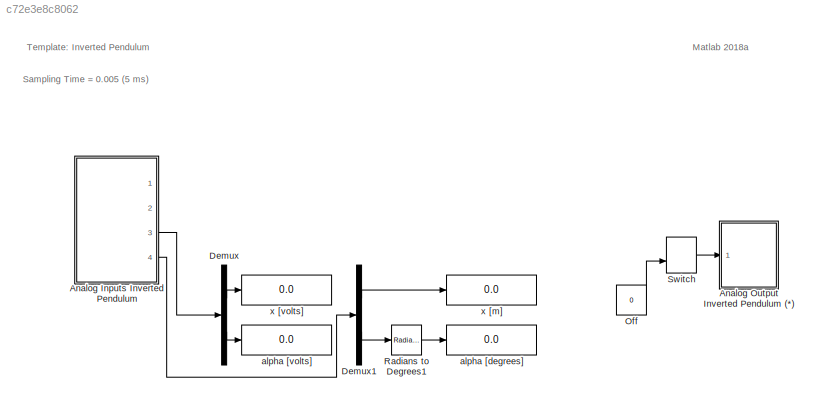
MODEL slx_c72e3e8c8062
KIND model
CONFIG AbsTol = auto
CONFIG EnableMultiTasking = off
CONFIG FixedStep = 0.005
CONFIG MaxStep = auto
CONFIG MinStep = auto
CONFIG RelTol = 1e-3
CONFIG SampleTimeConstraint = Unconstrained
CONFIG Solver = FixedStepDiscrete
CONFIG SolverName = FixedStepDiscrete
CONFIG StartTime = 0.0
CONFIG StopTime = inf
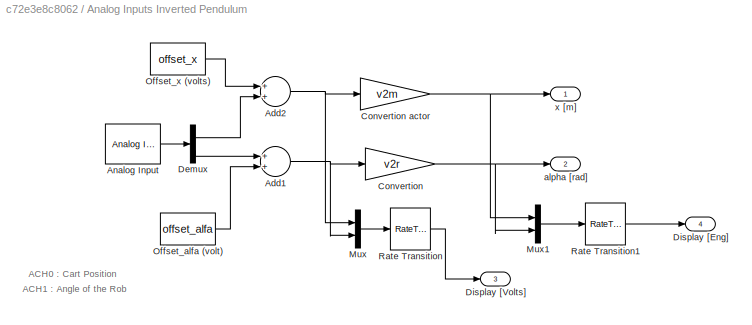
BLOCK [SubSystem] Analog Inputs Inverted Pendulum
  Ports = [0, 4]
  RequestExecContextInheritance = off
BLOCK [Sum] Analog Inputs Inverted Pendulum/Add1
  InputSameDT = off
  OutDataTypeStr = Inherit: Inherit via internal rule
  Ports = [2, 1]
  SaturateOnIntegerOverflow = off
BLOCK [Sum] Analog Inputs Inverted Pendulum/Add2
  InputSameDT = off
  OutDataTypeStr = Inherit: Inherit via internal rule
  Ports = [2, 1]
  SaturateOnIntegerOverflow = off
BLOCK [Reference] Analog Inputs Inverted Pendulum/Analog Input  REF=sldrtlib/Analog Input
  AttributesFormatString = National Instruments\nPCI-6014 [auto]
  Ports = [0, 1]
  SourceBlock = sldrtlib/Analog Input
  SourceProductBaseCode = WT
  SourceProductName = Simulink Desktop Real-Time
  SourceType = Simulink Desktop Real-Time Analog Input
BLOCK [Gain] Analog Inputs Inverted Pendulum/Convertion 
  Gain = v2r
  OutDataTypeStr = Inherit: Inherit via internal rule
  ParamDataTypeStr = Inherit: Inherit via internal rule
  SaturateOnIntegerOverflow = off
BLOCK [Gain] Analog Inputs Inverted Pendulum/Convertion actor
  Gain = v2m
  OutDataTypeStr = Inherit: Inherit via internal rule
  ParamDataTypeStr = Inherit: Inherit via internal rule
  SaturateOnIntegerOverflow = off
BLOCK [Demux] Analog Inputs Inverted Pendulum/Demux
  DisplayOption = bar
  Outputs = 2
  Ports = [1, 2]
BLOCK [Outport] Analog Inputs Inverted Pendulum/Display [Eng]
  IconDisplay = Port number
  Port = 4
BLOCK [Outport] Analog Inputs Inverted Pendulum/Display [Volts]
  IconDisplay = Port number
  Port = 3
BLOCK [Mux] Analog Inputs Inverted Pendulum/Mux
  DisplayOption = bar
  Inputs = 2
  Ports = [2, 1]
BLOCK [Mux] Analog Inputs Inverted Pendulum/Mux1
  DisplayOption = bar
  Inputs = 2
  Ports = [2, 1]
BLOCK [Constant] Analog Inputs Inverted Pendulum/Offset_alfa (volt)
  Value = offset_alfa
BLOCK [Constant] Analog Inputs Inverted Pendulum/Offset_x (volts)
  Value = offset_x
BLOCK [RateTransition] Analog Inputs Inverted Pendulum/Rate Transition
  OutPortSampleTime = 0.25
BLOCK [RateTransition] Analog Inputs Inverted Pendulum/Rate Transition1
  OutPortSampleTime = 0.25
BLOCK [Outport] Analog Inputs Inverted Pendulum/alpha [rad]
  IconDisplay = Port number
  Port = 2
BLOCK [Outport] Analog Inputs Inverted Pendulum/x [m]
  IconDisplay = Port number
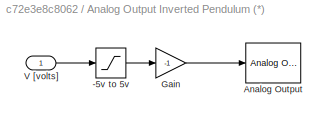
BLOCK [SubSystem] Analog Output Inverted Pendulum (*)
  Ports = [1]
  RequestExecContextInheritance = off
BLOCK [Saturate] Analog Output Inverted Pendulum (*)/-5v to 5v
  InputPortMap = u0
  LowerLimit = -5
  Ports = [1, 1]
  UpperLimit = 5
BLOCK [Reference] Analog Output Inverted Pendulum (*)/Analog Output  REF=sldrtlib/Analog Output
  AttributesFormatString = National Instruments\nPCI-6014 [auto]
  Ports = [1]
  SourceBlock = sldrtlib/Analog Output
  SourceProductBaseCode = WT
  SourceProductName = Simulink Desktop Real-Time
  SourceType = Simulink Desktop Real-Time Analog Output
BLOCK [Gain] Analog Output Inverted Pendulum (*)/Gain
  Gain = -1
  OutDataTypeStr = Inherit: Inherit via internal rule
  ParamDataTypeStr = Inherit: Inherit via internal rule
  SaturateOnIntegerOverflow = off
BLOCK [Inport] Analog Output Inverted Pendulum (*)/V [volts]
  IconDisplay = Port number
BLOCK [Demux] Demux
  DisplayOption = bar
  Outputs = 2
  Ports = [1, 2]
BLOCK [Demux] Demux1
  DisplayOption = bar
  Outputs = 2
  Ports = [1, 2]
BLOCK [Constant] Off
  Value = 0
BLOCK [Reference] Radians to Degrees1  REF=simulink_extras/Transformations/Radians
to Degrees
  Ports = [1, 1]
  SourceBlock = simulink_extras/Transformations/Radians\nto Degrees
  SourceProductBaseCode = SL
  SourceProductName = Simulink
  SourceType = RadiansToDegrees
BLOCK [ManualSwitch] Switch  
  CurrentSetting = 0
BLOCK [Display] alpha [degrees]
  Decimation = 1
  Ports = [1]
BLOCK [Display] alpha [volts]
  Decimation = 1
  Ports = [1]
BLOCK [Display] x [m]
  Decimation = 1
  Ports = [1]
BLOCK [Display] x [volts]
  Decimation = 1
  Ports = [1]
ANNOTATION (root): Matlab 2018a
ANNOTATION (root): Sampling Time = 0.005 (5 ms)
ANNOTATION (root): Template: Inverted Pendulum
ANNOTATION Analog Inputs Inverted Pendulum: ACH0 : Cart Position
ANNOTATION Analog Inputs Inverted Pendulum: ACH1 : Angle of the Rob
NET Analog Inputs Inverted Pendulum/Add1:1 -> Analog Inputs Inverted Pendulum/Convertion :1, Analog Inputs Inverted Pendulum/Mux:2
NET Analog Inputs Inverted Pendulum/Add2:1 -> Analog Inputs Inverted Pendulum/Convertion actor:1, Analog Inputs Inverted Pendulum/Mux:1
LINE Analog Inputs Inverted Pendulum/Analog Input:1 -> Analog Inputs Inverted Pendulum/Demux:1
NET Analog Inputs Inverted Pendulum/Convertion :1 -> Analog Inputs Inverted Pendulum/Mux1:2, Analog Inputs Inverted Pendulum/alpha [rad]:1
NET Analog Inputs Inverted Pendulum/Convertion actor:1 -> Analog Inputs Inverted Pendulum/Mux1:1, Analog Inputs Inverted Pendulum/x [m]:1
LINE Analog Inputs Inverted Pendulum/Demux:1 -> Analog Inputs Inverted Pendulum/Add2:2
LINE Analog Inputs Inverted Pendulum/Demux:2 -> Analog Inputs Inverted Pendulum/Add1:1
LINE Analog Inputs Inverted Pendulum/Mux1:1 -> Analog Inputs Inverted Pendulum/Rate Transition1:1
LINE Analog Inputs Inverted Pendulum/Mux:1 -> Analog Inputs Inverted Pendulum/Rate Transition:1
LINE Analog Inputs Inverted Pendulum/Offset_alfa (volt):1 -> Analog Inputs Inverted Pendulum/Add1:2
LINE Analog Inputs Inverted Pendulum/Offset_x (volts):1 -> Analog Inputs Inverted Pendulum/Add2:1
LINE Analog Inputs Inverted Pendulum/Rate Transition1:1 -> Analog Inputs Inverted Pendulum/Display [Eng]:1
LINE Analog Inputs Inverted Pendulum/Rate Transition:1 -> Analog Inputs Inverted Pendulum/Display [Volts]:1
LINE Analog Inputs Inverted Pendulum:3 -> Demux:1
LINE Analog Inputs Inverted Pendulum:4 -> Demux1:1
LINE Analog Output Inverted Pendulum (*)/-5v to 5v:1 -> Analog Output Inverted Pendulum (*)/Gain:1
LINE Analog Output Inverted Pendulum (*)/Gain:1 -> Analog Output Inverted Pendulum (*)/Analog Output:1
LINE Analog Output Inverted Pendulum (*)/V [volts]:1 -> Analog Output Inverted Pendulum (*)/-5v to 5v:1
LINE Demux1:1 -> x [m]:1
LINE Demux1:2 -> Radians to Degrees1:1
LINE Demux:1 -> x [volts]:1
LINE Demux:2 -> alpha [volts]:1
LINE Off:1 -> Switch  :2
LINE Radians to Degrees1:1 -> alpha [degrees]:1
LINE Switch  :1 -> Analog Output Inverted Pendulum (*):1
note: NET lines group one-source signal fan-out (src -> all destinations, sorted); 1:1 wires keep LINE
